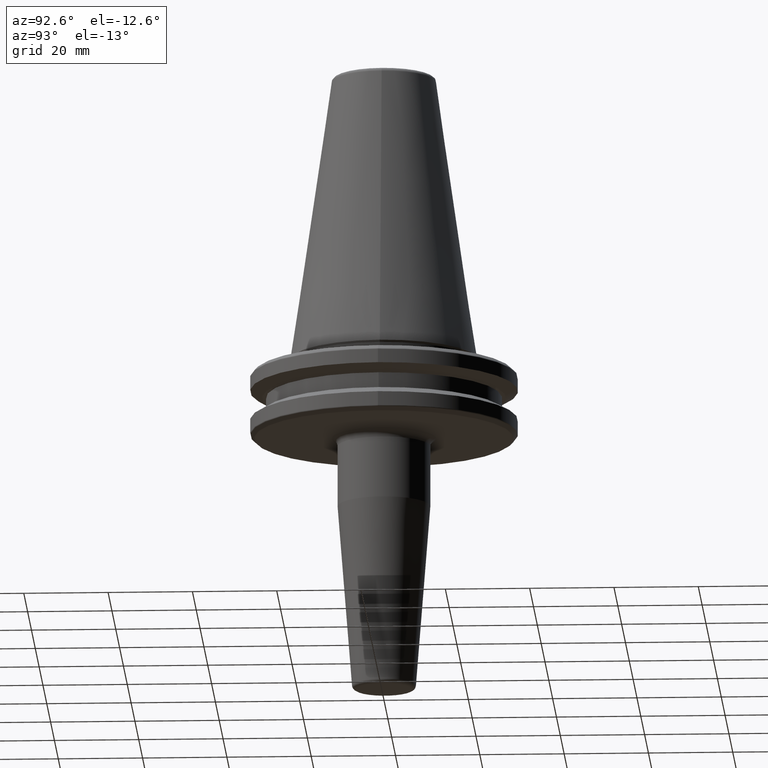
[diagram: clean part render]
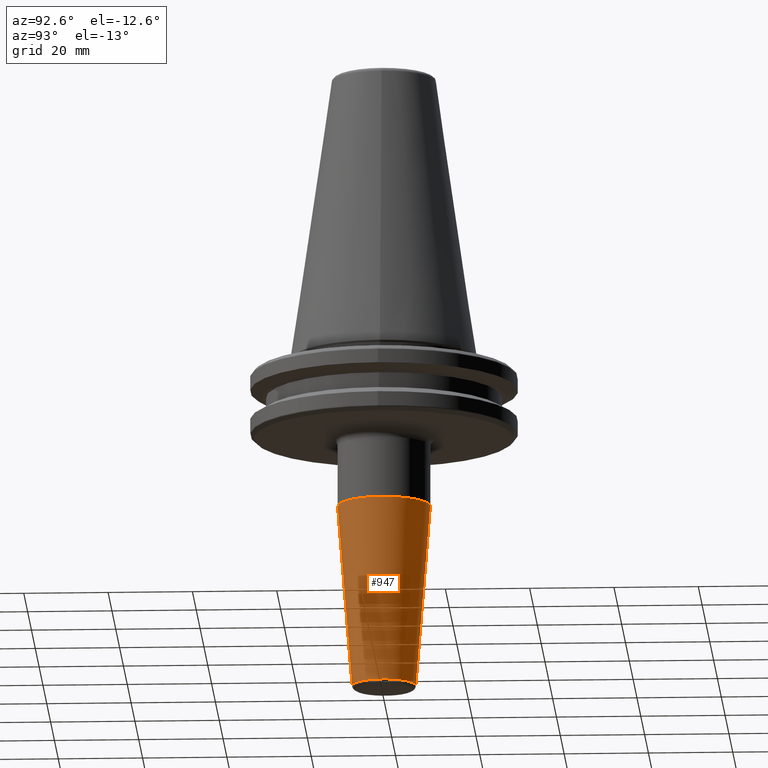
[diagram: same view with one face highlighted and labeled with its STEP entity id]
A machine part, auxiliary view. The second image highlights one B-rep face of the part: STEP entity #947.
In plain terms, the highlighted conical surface has half-angle 4.5 deg.
Its self-contained STEP definition (entity closure, byte-faithful):
#31 = LINE ( 'NONE', #549, #1026 ) ;
#33 = CARTESIAN_POINT ( 'NONE',  ( 9.273670758604465400E-016, -7.572526842074919900, -79.07845909572785100 ) ) ;
#55 = AXIS2_PLACEMENT_3D ( 'NONE', #821, #254, #917 ) ;
#82 = CARTESIAN_POINT ( 'NONE',  ( 0.0000000000000000000, -2.675592333722437400E-016, -79.07845909572785100 ) ) ;
#87 = CIRCLE ( 'NONE', #139, 11.00000000000001100 ) ;
#91 = CARTESIAN_POINT ( 'NONE',  ( 0.0000000000000000000, 7.572526842074919900, -79.07845909572785100 ) ) ;
#139 = AXIS2_PLACEMENT_3D ( 'NONE', #248, #904, #339 ) ;
#248 = CARTESIAN_POINT ( 'NONE',  ( 0.0000000000000000000, -1.258863725177652600E-014, -35.52828342338863600 ) ) ;
#254 = DIRECTION ( 'NONE',  ( -0.0000000000000000000, 2.829168385244881300E-016, -1.000000000000000000 ) ) ;
#296 = DIRECTION ( 'NONE',  ( 0.0000000000000000000, -0.07845909572784567900, 0.9969173337331278500 ) ) ;
#322 = CIRCLE ( 'NONE', #55, 7.572526842074919900 ) ;
#339 = DIRECTION ( 'NONE',  ( 0.0000000000000000000, 1.000000000000000000, 0.0000000000000000000 ) ) ;
#469 = VECTOR ( 'NONE', #296, 1000.000000000000100 ) ;
#549 = CARTESIAN_POINT ( 'NONE',  ( 9.273670758604465400E-016, 7.572526842074919900, -79.07845909572785100 ) ) ;
#556 = VERTEX_POINT ( 'NONE', #565 ) ;
#565 = CARTESIAN_POINT ( 'NONE',  ( 0.0000000000000000000, -11.00000000000002100, -35.52828342338863600 ) ) ;
#567 = CONICAL_SURFACE ( 'NONE', #880, 7.572526842074919900, 0.07853981633974530000 ) ;
#604 = EDGE_CURVE ( 'NONE', #756, #556, #87, .T. ) ;
#639 = EDGE_CURVE ( 'NONE', #1113, #1257, #322, .T. ) ;
#652 = ORIENTED_EDGE ( 'NONE', *, *, #660, .T. ) ;
#657 = DIRECTION ( 'NONE',  ( 0.0000000000000000000, -1.000000000000000000, 0.0000000000000000000 ) ) ;
#660 = EDGE_CURVE ( 'NONE', #1113, #756, #31, .T. ) ;
#697 = LINE ( 'NONE', #862, #469 ) ;
#756 = VERTEX_POINT ( 'NONE', #928 ) ;
#821 = CARTESIAN_POINT ( 'NONE',  ( 0.0000000000000000000, -2.675592333722437400E-016, -79.07845909572785100 ) ) ;
#862 = CARTESIAN_POINT ( 'NONE',  ( 0.0000000000000000000, -7.572526842074919900, -79.07845909572785100 ) ) ;
#880 = AXIS2_PLACEMENT_3D ( 'NONE', #82, #1239, #657 ) ;
#896 = ORIENTED_EDGE ( 'NONE', *, *, #639, .F. ) ;
#904 = DIRECTION ( 'NONE',  ( -0.0000000000000000000, 2.829168385244881300E-016, -1.000000000000000000 ) ) ;
#906 = ORIENTED_EDGE ( 'NONE', *, *, #604, .T. ) ;
#917 = DIRECTION ( 'NONE',  ( 0.0000000000000000000, 1.000000000000000000, 0.0000000000000000000 ) ) ;
#928 = CARTESIAN_POINT ( 'NONE',  ( 1.347111479062090000E-015, 11.00000000000000000, -35.52828342338863600 ) ) ;
#947 = ADVANCED_FACE ( 'NONE', ( #1134 ), #567, .T. ) ;
#965 = ORIENTED_EDGE ( 'NONE', *, *, #1143, .F. ) ;
#1026 = VECTOR ( 'NONE', #1215, 1000.000000000000100 ) ;
#1046 = EDGE_LOOP ( 'NONE', ( #896, #652, #906, #965 ) ) ;
#1113 = VERTEX_POINT ( 'NONE', #91 ) ;
#1134 = FACE_OUTER_BOUND ( 'NONE', #1046, .T. ) ;
#1143 = EDGE_CURVE ( 'NONE', #1257, #556, #697, .T. ) ;
#1215 = DIRECTION ( 'NONE',  ( 9.608468044710165900E-018, 0.07845909572784512400, 0.9969173337331278500 ) ) ;
#1239 = DIRECTION ( 'NONE',  ( 0.0000000000000000000, -2.829168385244881300E-016, 1.000000000000000000 ) ) ;
#1257 = VERTEX_POINT ( 'NONE', #33 ) ;